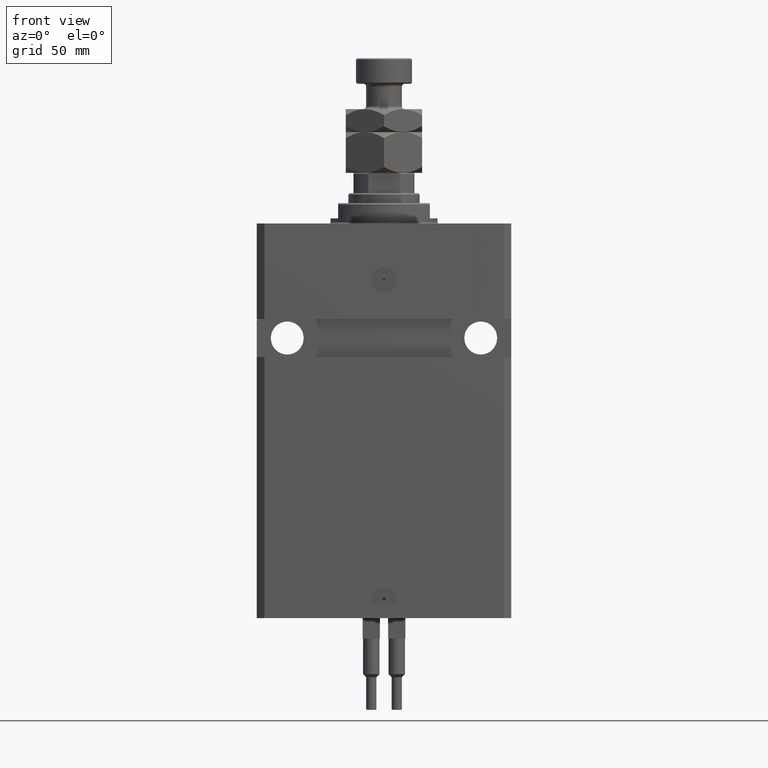
[diagram: clean part render]
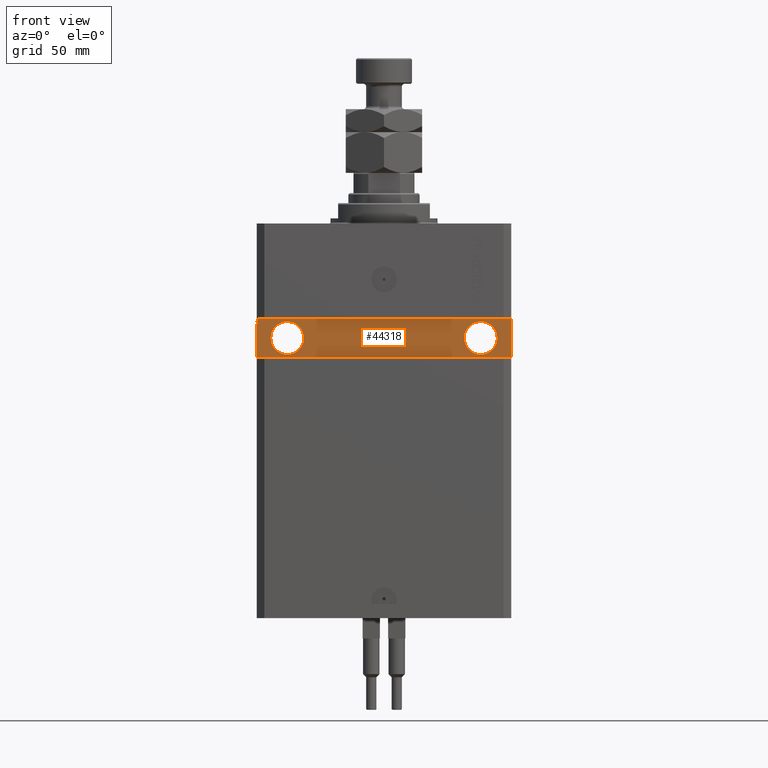
[diagram: same view with one face highlighted and labeled with its STEP entity id]
A machine part, front view. The second image highlights one B-rep face of the part: STEP entity #44318.
In plain terms, the highlighted planar face has unit normal (0, -1, 0).
Its self-contained STEP definition (entity closure, byte-faithful):
#1364 = CIRCLE ( 'NONE', #37375, 6.499999999999999112 ) ;
#1770 = ORIENTED_EDGE ( 'NONE', *, *, #49754, .T. ) ;
#1796 = CARTESIAN_POINT ( 'NONE',  ( -50.00000000000002842, -32.50000000000000711, -37.62144886363636687 ) ) ;
#2238 = CARTESIAN_POINT ( 'NONE',  ( -50.00000000000002842, -32.50000000000000711, -37.99999999999999289 ) ) ;
#2283 = CARTESIAN_POINT ( 'NONE',  ( 31.50000000000001421, -32.50000000000000000, -45.00000000000000000 ) ) ;
#3058 = LINE ( 'NONE', #14854, #30573 ) ;
#3107 = CARTESIAN_POINT ( 'NONE',  ( -49.50000000000001421, -32.50000000000000711, -39.43474002179300442 ) ) ;
#4845 = ORIENTED_EDGE ( 'NONE', *, *, #37902, .F. ) ;
#5261 = VECTOR ( 'NONE', #18754, 1000.000000000000000 ) ;
#5337 = DIRECTION ( 'NONE',  ( 8.806446732139696505E-17, -1.000000000000000000, 6.162975822039154730E-33 ) ) ;
#5818 = CARTESIAN_POINT ( 'NONE',  ( -50.00000000000002842, -32.50000000000000711, -37.50000000000000711 ) ) ;
#6040 = DIRECTION ( 'NONE',  ( 1.000000000000000000, 0.000000000000000000, 0.000000000000000000 ) ) ;
#6412 = LINE ( 'NONE', #34101, #7362 ) ;
#6796 = EDGE_CURVE ( 'NONE', #27461, #19756, #41959, .T. ) ;
#6887 = VERTEX_POINT ( 'NONE', #48896 ) ;
#7178 = ORIENTED_EDGE ( 'NONE', *, *, #26859, .F. ) ;
#7362 = VECTOR ( 'NONE', #45145, 1000.000000000000000 ) ;
#7778 = CARTESIAN_POINT ( 'NONE',  ( -50.00000000000002842, -32.50000000000000711, -39.43474002179300442 ) ) ;
#8175 = CARTESIAN_POINT ( 'NONE',  ( -49.50000000000001421, -32.50000000000001421, -38.87066340383893959 ) ) ;
#8498 = VECTOR ( 'NONE', #38951, 1000.000000000000000 ) ;
#9086 = EDGE_CURVE ( 'NONE', #41375, #20923, #26725, .T. ) ;
#9299 = AXIS2_PLACEMENT_3D ( 'NONE', #46588, #42742, #10447 ) ;
#9364 = EDGE_CURVE ( 'NONE', #27431, #31642, #6412, .T. ) ;
#9660 = EDGE_CURVE ( 'NONE', #12349, #27461, #32284, .T. ) ;
#10200 = CARTESIAN_POINT ( 'NONE',  ( 38.00000000000001421, -32.50000000000000000, -45.00000000000000000 ) ) ;
#10204 = EDGE_LOOP ( 'NONE', ( #16736, #22029 ) ) ;
#10382 = CARTESIAN_POINT ( 'NONE',  ( -50.00000000000002842, -32.50000000000000711, -52.50000000000000000 ) ) ;
#10447 = DIRECTION ( 'NONE',  ( 1.000000000000000000, 0.000000000000000000, 0.000000000000000000 ) ) ;
#10811 = LINE ( 'NONE', #3107, #5261 ) ;
#11443 = EDGE_CURVE ( 'NONE', #6887, #38545, #27887, .T. ) ;
#12349 = VERTEX_POINT ( 'NONE', #23530 ) ;
#13065 = VECTOR ( 'NONE', #24328, 1000.000000000000000 ) ;
#13189 = VERTEX_POINT ( 'NONE', #48216 ) ;
#13344 = LINE ( 'NONE', #23858, #18261 ) ;
#13420 = ORIENTED_EDGE ( 'NONE', *, *, #31703, .T. ) ;
#13991 = CARTESIAN_POINT ( 'NONE',  ( 38.00000000000001421, -32.50000000000000000, -45.00000000000000000 ) ) ;
#14854 = CARTESIAN_POINT ( 'NONE',  ( -49.50000000000016342, -32.50000000000000711, -39.86910993535713743 ) ) ;
#15058 = LINE ( 'NONE', #18648, #36026 ) ;
#16145 = ORIENTED_EDGE ( 'NONE', *, *, #9660, .T. ) ;
#16334 = DIRECTION ( 'NONE',  ( 1.101411730780568590E-16, -1.000000000000000000, 0.000000000000000000 ) ) ;
#16612 = CARTESIAN_POINT ( 'NONE',  ( 49.99999999999999289, -32.49999999999999289, -52.49999999999998579 ) ) ;
#16736 = ORIENTED_EDGE ( 'NONE', *, *, #11443, .F. ) ;
#17005 = EDGE_CURVE ( 'NONE', #40188, #19756, #13344, .T. ) ;
#17222 = CARTESIAN_POINT ( 'NONE',  ( 49.99999999999999289, -32.49999999999999289, -52.49999999999998579 ) ) ;
#18261 = VECTOR ( 'NONE', #39492, 1000.000000000000000 ) ;
#18648 = CARTESIAN_POINT ( 'NONE',  ( -50.00000000000002842, -32.50000000000000711, -37.50000000000000711 ) ) ;
#18754 = DIRECTION ( 'NONE',  ( 1.000000000000000000, 0.000000000000000000, 0.000000000000000000 ) ) ;
#19067 = PLANE ( 'NONE',  #50463 ) ;
#19610 = EDGE_CURVE ( 'NONE', #44512, #13189, #10811, .T. ) ;
#19756 = VERTEX_POINT ( 'NONE', #1796 ) ;
#19931 = CARTESIAN_POINT ( 'NONE',  ( -50.00000000000002842, -32.50000000000000711, -37.50000000000000711 ) ) ;
#20923 = VERTEX_POINT ( 'NONE', #2238 ) ;
#20965 = LINE ( 'NONE', #16612, #31678 ) ;
#21724 = DIRECTION ( 'NONE',  ( 1.000000000000000000, 0.000000000000000000, 0.000000000000000000 ) ) ;
#22027 = DIRECTION ( 'NONE',  ( 3.791485858024926499E-13, 5.261743621399924533E-29, 1.000000000000000000 ) ) ;
#22029 = ORIENTED_EDGE ( 'NONE', *, *, #22066, .F. ) ;
#22066 = EDGE_CURVE ( 'NONE', #38545, #6887, #47801, .T. ) ;
#22455 = VERTEX_POINT ( 'NONE', #2283 ) ;
#22657 = FACE_BOUND ( 'NONE', #10204, .T. ) ;
#22918 = VECTOR ( 'NONE', #34263, 1000.000000000000000 ) ;
#23069 = ORIENTED_EDGE ( 'NONE', *, *, #9086, .T. ) ;
#23311 = LINE ( 'NONE', #8175, #8498 ) ;
#23530 = CARTESIAN_POINT ( 'NONE',  ( 49.99999999999999289, -32.49999999999999289, -37.49999999999999289 ) ) ;
#23858 = CARTESIAN_POINT ( 'NONE',  ( -49.50000000000000711, -32.49999999999999289, -37.62144886363635976 ) ) ;
#24307 = DIRECTION ( 'NONE',  ( 0.000000000000000000, 0.000000000000000000, -1.000000000000000000 ) ) ;
#24328 = DIRECTION ( 'NONE',  ( -1.000000000000000000, -1.387778780781445182E-16, -1.387778780781445182E-16 ) ) ;
#26665 = ORIENTED_EDGE ( 'NONE', *, *, #6796, .T. ) ;
#26725 = LINE ( 'NONE', #30066, #30231 ) ;
#26744 = ORIENTED_EDGE ( 'NONE', *, *, #17005, .F. ) ;
#26759 = CARTESIAN_POINT ( 'NONE',  ( 4.616128571667024604E-15, -32.50000000000000000, 0.000000000000000000 ) ) ;
#26859 = EDGE_CURVE ( 'NONE', #22455, #37243, #40088, .T. ) ;
#27075 = EDGE_CURVE ( 'NONE', #20923, #33796, #15058, .T. ) ;
#27431 = VERTEX_POINT ( 'NONE', #10382 ) ;
#27461 = VERTEX_POINT ( 'NONE', #49611 ) ;
#27788 = CARTESIAN_POINT ( 'NONE',  ( -44.49999999999998579, -32.50000000000000711, -45.00000000000000711 ) ) ;
#27887 = CIRCLE ( 'NONE', #45096, 6.499999999999999112 ) ;
#28709 = ORIENTED_EDGE ( 'NONE', *, *, #44784, .F. ) ;
#28998 = EDGE_CURVE ( 'NONE', #40188, #41375, #43042, .T. ) ;
#29811 = DIRECTION ( 'NONE',  ( -1.000000000000000000, -0.000000000000000000, -0.000000000000000000 ) ) ;
#30066 = CARTESIAN_POINT ( 'NONE',  ( -49.50000000000000711, -32.49999999999999289, -37.99999999999999289 ) ) ;
#30231 = VECTOR ( 'NONE', #29811, 1000.000000000000000 ) ;
#30283 = AXIS2_PLACEMENT_3D ( 'NONE', #10200, #5337, #21724 ) ;
#30573 = VECTOR ( 'NONE', #22027, 1000.000000000000000 ) ;
#31466 = DIRECTION ( 'NONE',  ( 0.000000000000000000, 0.000000000000000000, -1.000000000000000000 ) ) ;
#31642 = VERTEX_POINT ( 'NONE', #17222 ) ;
#31678 = VECTOR ( 'NONE', #43799, 1000.000000000000000 ) ;
#31703 = EDGE_CURVE ( 'NONE', #44512, #27431, #47355, .T. ) ;
#31782 = ORIENTED_EDGE ( 'NONE', *, *, #19610, .F. ) ;
#32284 = LINE ( 'NONE', #43568, #13065 ) ;
#32307 = VERTEX_POINT ( 'NONE', #39788 ) ;
#33796 = VERTEX_POINT ( 'NONE', #34098 ) ;
#34098 = CARTESIAN_POINT ( 'NONE',  ( -50.00000000000002842, -32.50000000000000711, -38.87066340383893959 ) ) ;
#34101 = CARTESIAN_POINT ( 'NONE',  ( -50.00000000000002842, -32.50000000000000711, -52.50000000000000000 ) ) ;
#34180 = ORIENTED_EDGE ( 'NONE', *, *, #9364, .T. ) ;
#34263 = DIRECTION ( 'NONE',  ( 0.000000000000000000, 0.000000000000000000, -1.000000000000000000 ) ) ;
#34451 = FACE_BOUND ( 'NONE', #44111, .T. ) ;
#34702 = DIRECTION ( 'NONE',  ( 1.000000000000000000, 1.387778780781445182E-16, 0.000000000000000000 ) ) ;
#34786 = DIRECTION ( 'NONE',  ( 0.000000000000000000, 0.000000000000000000, -1.000000000000000000 ) ) ;
#36026 = VECTOR ( 'NONE', #34786, 1000.000000000000000 ) ;
#36103 = CARTESIAN_POINT ( 'NONE',  ( 44.50000000000001421, -32.50000000000000000, -45.00000000000000000 ) ) ;
#37243 = VERTEX_POINT ( 'NONE', #36103 ) ;
#37375 = AXIS2_PLACEMENT_3D ( 'NONE', #13991, #46036, #6040 ) ;
#37793 = DIRECTION ( 'NONE',  ( 1.387778780781445182E-16, -1.000000000000000000, 0.000000000000000000 ) ) ;
#37902 = EDGE_CURVE ( 'NONE', #13189, #32307, #3058, .T. ) ;
#38515 = VECTOR ( 'NONE', #24307, 1000.000000000000000 ) ;
#38545 = VERTEX_POINT ( 'NONE', #27788 ) ;
#38870 = EDGE_CURVE ( 'NONE', #32307, #33796, #23311, .T. ) ;
#38951 = DIRECTION ( 'NONE',  ( -1.000000000000000000, -0.000000000000000000, -0.000000000000000000 ) ) ;
#39211 = ORIENTED_EDGE ( 'NONE', *, *, #27075, .T. ) ;
#39492 = DIRECTION ( 'NONE',  ( -1.000000000000000000, -0.000000000000000000, -0.000000000000000000 ) ) ;
#39788 = CARTESIAN_POINT ( 'NONE',  ( -49.49999999999977973, -32.50000000000000711, -38.87066337907741342 ) ) ;
#40088 = CIRCLE ( 'NONE', #30283, 6.499999999999999112 ) ;
#40175 = DIRECTION ( 'NONE',  ( 1.000000000000000000, 0.000000000000000000, 0.000000000000000000 ) ) ;
#40188 = VERTEX_POINT ( 'NONE', #46106 ) ;
#40274 = VECTOR ( 'NONE', #31466, 1000.000000000000000 ) ;
#40573 = ORIENTED_EDGE ( 'NONE', *, *, #28998, .T. ) ;
#40992 = EDGE_LOOP ( 'NONE', ( #39211, #42394, #4845, #31782, #13420, #34180, #1770, #16145, #26665, #26744, #40573, #23069 ) ) ;
#41375 = VERTEX_POINT ( 'NONE', #42412 ) ;
#41959 = LINE ( 'NONE', #5818, #22918 ) ;
#42394 = ORIENTED_EDGE ( 'NONE', *, *, #38870, .F. ) ;
#42412 = CARTESIAN_POINT ( 'NONE',  ( -49.50000000000000711, -32.50000000000000711, -37.99999999999999289 ) ) ;
#42742 = DIRECTION ( 'NONE',  ( 1.101411730780568590E-16, -1.000000000000000000, 0.000000000000000000 ) ) ;
#43042 = LINE ( 'NONE', #47905, #38515 ) ;
#43568 = CARTESIAN_POINT ( 'NONE',  ( 49.99999999999999289, -32.49999999999999289, -37.49999999999999289 ) ) ;
#43799 = DIRECTION ( 'NONE',  ( 0.000000000000000000, 0.000000000000000000, 1.000000000000000000 ) ) ;
#44111 = EDGE_LOOP ( 'NONE', ( #28709, #7178 ) ) ;
#44318 = ADVANCED_FACE ( 'NONE', ( #34451, #22657, #50085 ), #19067, .T. ) ;
#44512 = VERTEX_POINT ( 'NONE', #7778 ) ;
#44784 = EDGE_CURVE ( 'NONE', #37243, #22455, #1364, .T. ) ;
#45096 = AXIS2_PLACEMENT_3D ( 'NONE', #47114, #16334, #40175 ) ;
#45145 = DIRECTION ( 'NONE',  ( 1.000000000000000000, 1.387778780781445182E-16, 1.387778780781445182E-16 ) ) ;
#46036 = DIRECTION ( 'NONE',  ( 8.806446732139696505E-17, -1.000000000000000000, 6.162975822039154730E-33 ) ) ;
#46106 = CARTESIAN_POINT ( 'NONE',  ( -49.50000000000000711, -32.50000000000000711, -37.62144886363635976 ) ) ;
#46588 = CARTESIAN_POINT ( 'NONE',  ( -37.99999999999998579, -32.50000000000000711, -45.00000000000000711 ) ) ;
#47114 = CARTESIAN_POINT ( 'NONE',  ( -37.99999999999998579, -32.50000000000000711, -45.00000000000000711 ) ) ;
#47355 = LINE ( 'NONE', #19931, #40274 ) ;
#47801 = CIRCLE ( 'NONE', #9299, 6.499999999999999112 ) ;
#47905 = CARTESIAN_POINT ( 'NONE',  ( -49.50000000000000711, -32.49999999999999289, -37.62144886363635976 ) ) ;
#48216 = CARTESIAN_POINT ( 'NONE',  ( -49.49999999999999289, -32.50000000000000711, -39.43474004052496440 ) ) ;
#48896 = CARTESIAN_POINT ( 'NONE',  ( -31.49999999999998579, -32.50000000000000711, -45.00000000000000711 ) ) ;
#49611 = CARTESIAN_POINT ( 'NONE',  ( -50.00000000000002842, -32.50000000000000711, -37.50000000000000711 ) ) ;
#49754 = EDGE_CURVE ( 'NONE', #31642, #12349, #20965, .T. ) ;
#50085 = FACE_OUTER_BOUND ( 'NONE', #40992, .T. ) ;
#50463 = AXIS2_PLACEMENT_3D ( 'NONE', #26759, #37793, #34702 ) ;